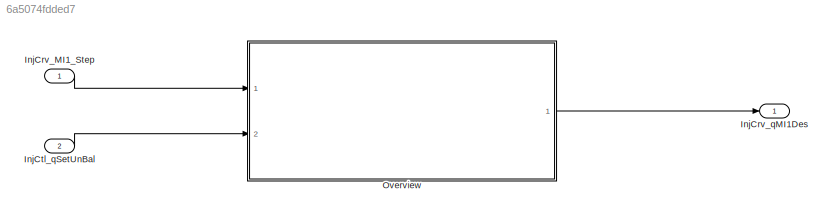
MODEL slx_6a5074fdded7
KIND model
CONFIG AbsTol = auto
CONFIG EnableMultiTasking = off
CONFIG FixedStep = 0.001
CONFIG MaxStep = auto
CONFIG MinStep = auto
CONFIG RelTol = 1e-3
CONFIG SampleTimeConstraint = Unconstrained
CONFIG SolverName = FixedStepDiscrete
CONFIG StartTime = 0.0
CONFIG StopTime = Inf
BLOCK [Inport] InjCrv_MI1_Step
  OutputFunctionCall = on
BLOCK [Outport] InjCrv_qMI1Des
  Description = desired MI1 injection quantity
  OutDataTypeStr = InjMass
  OutMax = 319
  OutMin = -319
  PortDimensions = [1 1]
  Unit = mg/hub
  VectorParamsAs1DForOutWhenUnconnected = off
BLOCK [Inport] InjCtl_qSetUnBal
  Description = Current injection quantity
  OutDataTypeStr = InjMass
  OutMax = 319
  OutMin = -319
  Port = 2
  PortDimensions = [1 1]
  Unit = mg/hub
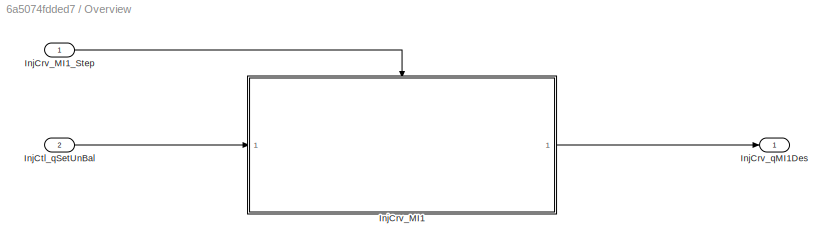
BLOCK [SubSystem] Overview
  Ports = [2, 1]
  RequestExecContextInheritance = off
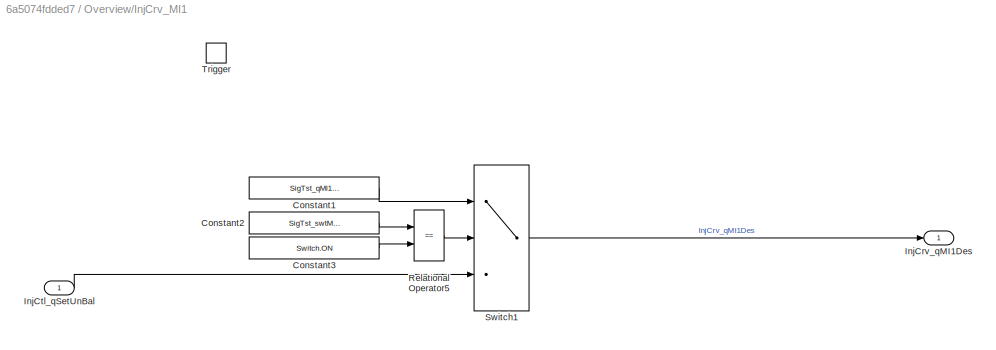
BLOCK [SubSystem] Overview/InjCrv_MI1
  Ports = [1, 1, 0, 1]
  RequestExecContextInheritance = off
BLOCK [Constant] Overview/InjCrv_MI1/Constant1
  Value = SigTst_qMI1_C
BLOCK [Constant] Overview/InjCrv_MI1/Constant2
  Value = SigTst_swtMI1Q_C
BLOCK [Constant] Overview/InjCrv_MI1/Constant3
  OutDataTypeStr = Inherit: Inherit via back propagation
  Value = Switch.ON
BLOCK [Outport] Overview/InjCrv_MI1/InjCrv_qMI1Des
  Tag = mg/hub
  VectorParamsAs1DForOutWhenUnconnected = off
BLOCK [Inport] Overview/InjCrv_MI1/InjCtl_qSetUnBal
  Tag = mg/hub
BLOCK [RelationalOperator] Overview/InjCrv_MI1/Relational Operator5
  Operator = ==
  OutDataTypeStr = boolean
  Ports = [2, 1]
  RndMeth = Round
BLOCK [Switch] Overview/InjCrv_MI1/Switch1
  Criteria = u2 ~= 0
  OutDataTypeStr = Inherit: Inherit via back propagation
  RndMeth = Round
  SaturateOnIntegerOverflow = off
BLOCK [TriggerPort] Overview/InjCrv_MI1/Trigger
  PortDimensions = 1
  Ports = []
  StatesWhenEnabling = held
  TriggerType = function-call
  VariantControl = Variant
BLOCK [Inport] Overview/InjCrv_MI1_Step
BLOCK [Outport] Overview/InjCrv_qMI1Des
  VectorParamsAs1DForOutWhenUnconnected = off
BLOCK [Inport] Overview/InjCtl_qSetUnBal
  Port = 2
LINE InjCrv_MI1_Step:1 -> Overview:1
LINE InjCtl_qSetUnBal:1 -> Overview:2
LINE Overview/InjCrv_MI1/Constant1:1 -> Overview/InjCrv_MI1/Switch1:1
LINE Overview/InjCrv_MI1/Constant2:1 -> Overview/InjCrv_MI1/Relational Operator5:1
LINE Overview/InjCrv_MI1/Constant3:1 -> Overview/InjCrv_MI1/Relational Operator5:2
LINE Overview/InjCrv_MI1/InjCtl_qSetUnBal:1 -> Overview/InjCrv_MI1/Switch1:3
LINE Overview/InjCrv_MI1/Relational Operator5:1 -> Overview/InjCrv_MI1/Switch1:2
LINE Overview/InjCrv_MI1/Switch1:1 -> Overview/InjCrv_MI1/InjCrv_qMI1Des:1
LINE Overview/InjCrv_MI1:1 -> Overview/InjCrv_qMI1Des:1
LINE Overview/InjCrv_MI1_Step:1 -> Overview/InjCrv_MI1:trigger
LINE Overview/InjCtl_qSetUnBal:1 -> Overview/InjCrv_MI1:1
LINE Overview:1 -> InjCrv_qMI1Des:1
